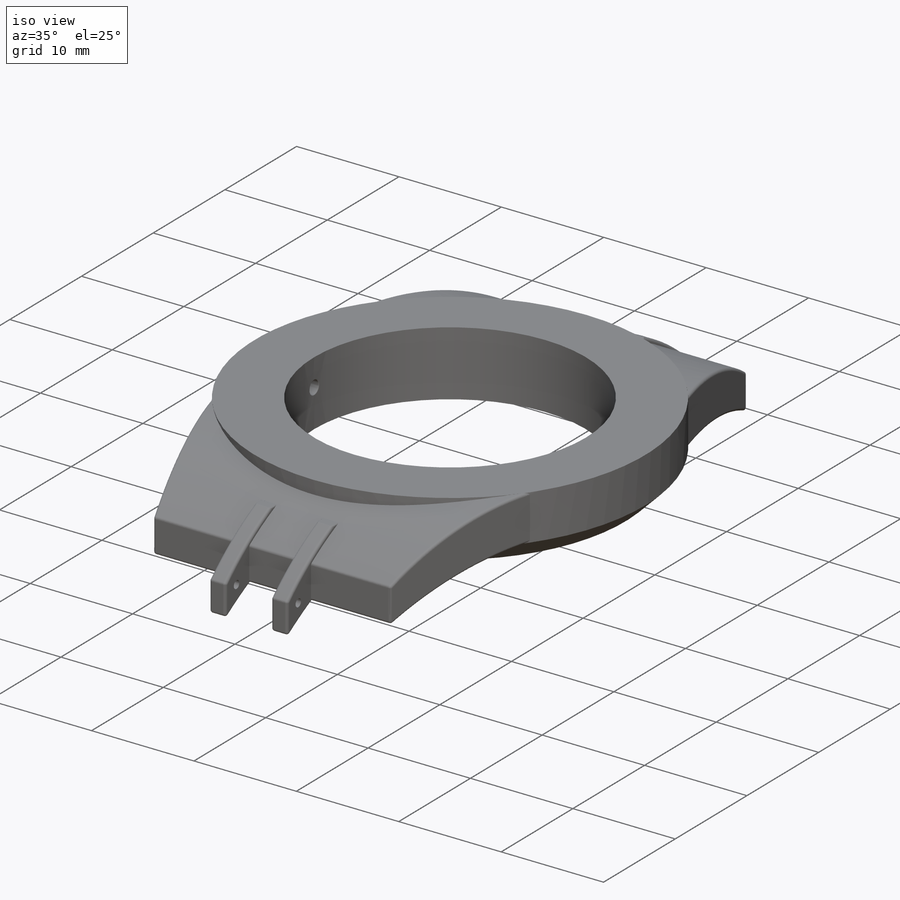
[diagram: iso view]
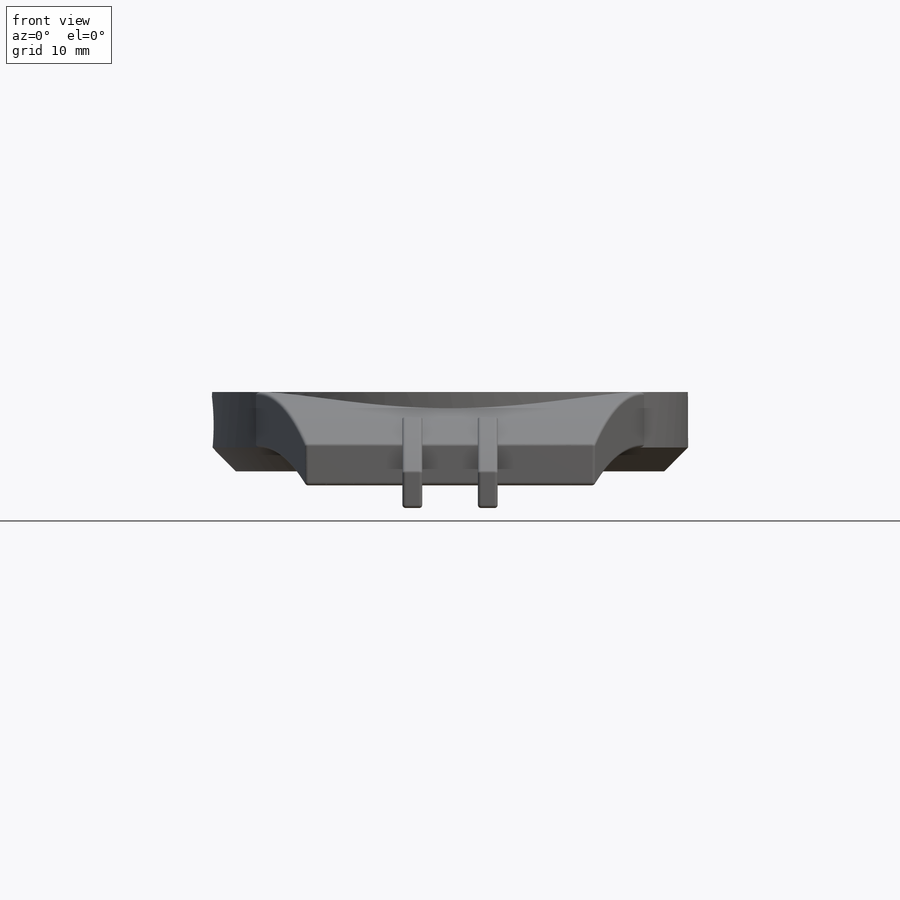
[diagram: front view]
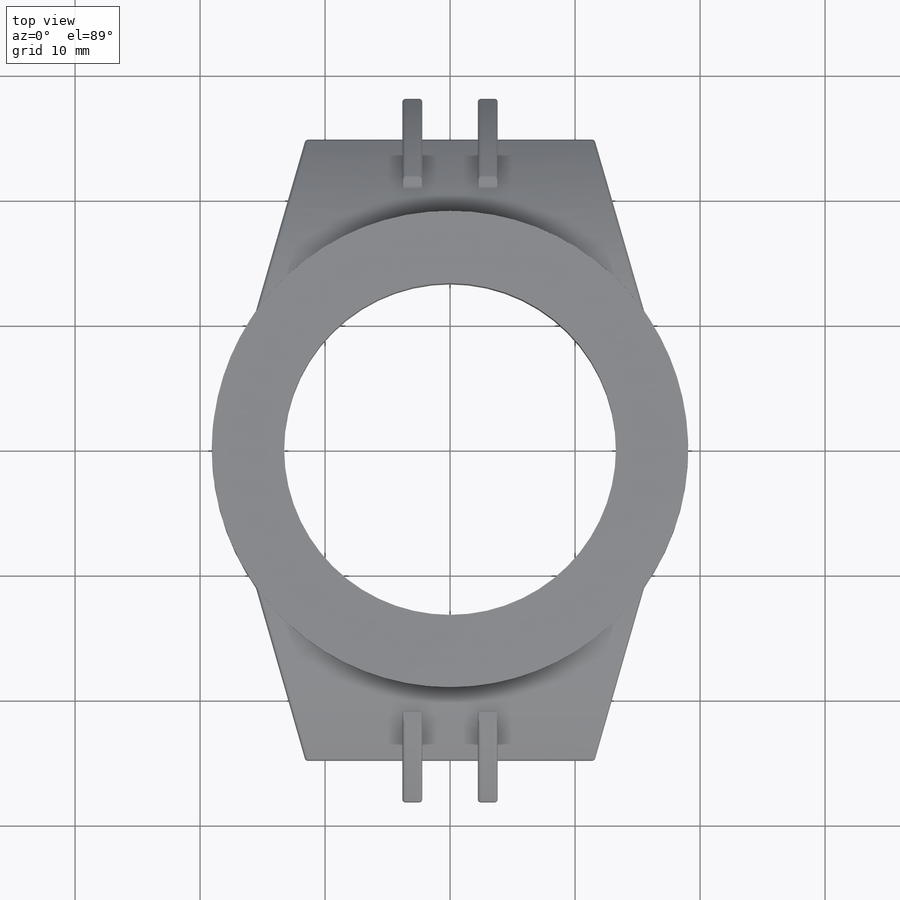
[diagram: top view]
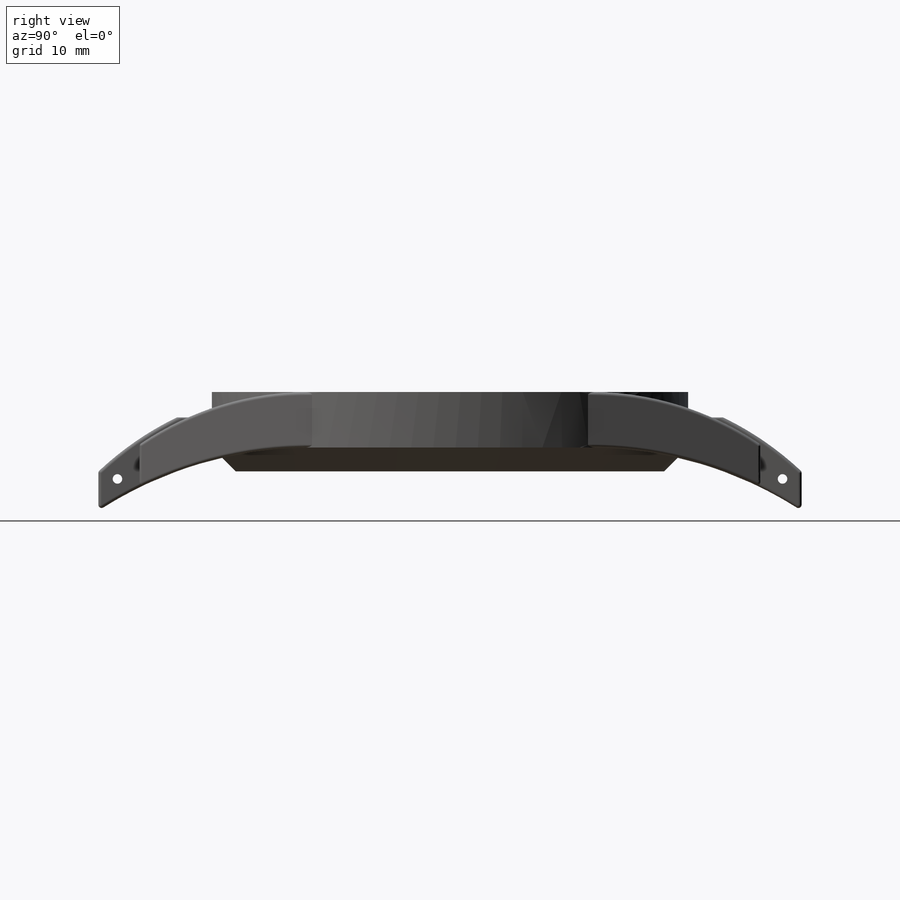
[diagram: right view]
SOLIDWORKS PART (.sldprt)
format: sldprt  version: not decoded by parser v0  size: 950,784 bytes
history: native  units: mm
features: sketch x14, cut_extrude x8, extrude x4, plane x4, fillet x4, mirror x3, material x1, chamfer x1 (+11 scaffold rows collapsed)
feature tree (50):
  scaffold x11  (default folders/planes/origin — collapsed)
  material  "Material <not specified>"
  sketch  "Sketch2"  dims[D1=38.1mm]
  extrude  "Extrude1"  Depth=6.35mm
  chamfer  "Chamfer1"  Distance=1.905mm Angle=45deg
  sketch  "Sketch3"  dims[c1.D3=38.1mm c1.D5=38.1mm c1.D1=18.796mm c1.D2=8.255mm c1.D4=2.159mm c2.D5=8.255mm c2.D6=2.159mm c2.D7=2.159mm c2.D8=2.159mm c2.D9=8.255mm c2.D10=8.255mm c2.D11=8.255mm c2.D1=23.114mm]
  extrude  "Extrude2"  Depth=7.62mm
  sketch  "Sketch4"  dims[D1=4.191mm D2=4.191mm]
  cut_extrude  "Extrude3"  [1 undecoded]
  sketch  "Sketch5"  dims[D1=~0.179126mm]
  cut_extrude  "Extrude4"  [1 undecoded]
  sketch  "Sketch6"
  plane  "Plane1"
  mirror  "Mirror1"
  sketch  "Sketch19"  dims[D1=33.274mm D2=~0.161519mm]
  cut_extrude  "Extrude10"  [1 undecoded]
  sketch  "Sketch7"
  plane  "Plane2"
  sketch  "Sketch11"
  extrude  "Extrude5"  Depth=2.54mm
  sketch  "Sketch12"  dims[D1=26.543mm]
  cut_extrude  "Extrude6"  [1 undecoded]
  plane  "Plane3"  Offset=19.798693mm
  sketch  "Sketch14"  dims[D1=1.27mm]
  cut_extrude  "Extrude7"  [1 undecoded]
  fillet  "Fillet10"  Radius=0.0635mm
  sketch  "Sketch15"  dims[D1=4.572mm]
  cut_extrude  "Extrude8"  Depth=1.016mm
  plane  "Plane4"
  sketch  "Sketch20"  dims[c1.D1=1.5875mm c1.D2=7.62mm c1.D3=3.302mm c2.D2=7.62mm]
  extrude  "Extrude11"  Depth=5.588mm
  sketch  "Sketch21"  dims[D1=0.381mm]
  cut_extrude  "Extrude12"  [1 undecoded]
  mirror  "Mirror2"
  sketch  "Sketch22"  dims[D1=0.762mm D2=2.54mm D3=1.524mm]
  cut_extrude  "Extrude13"  [1 undecoded]
  mirror  "Mirror3"
  fillet  "Fillet6"  Radius=0.254mm
  fillet  "Fillet11"  Radius=0.254mm
  fillet  "Fillet12"  Radius=0.127mm
decode coverage: 21 of 34 modeling features carry decoded parameters
note: ~ marks probable driven/reference dimensions
note: 7 parameter values undecoded
summary: no parameter record found for 7 features
note: suppression state not decoded; provenance and decode notes live in map.json
